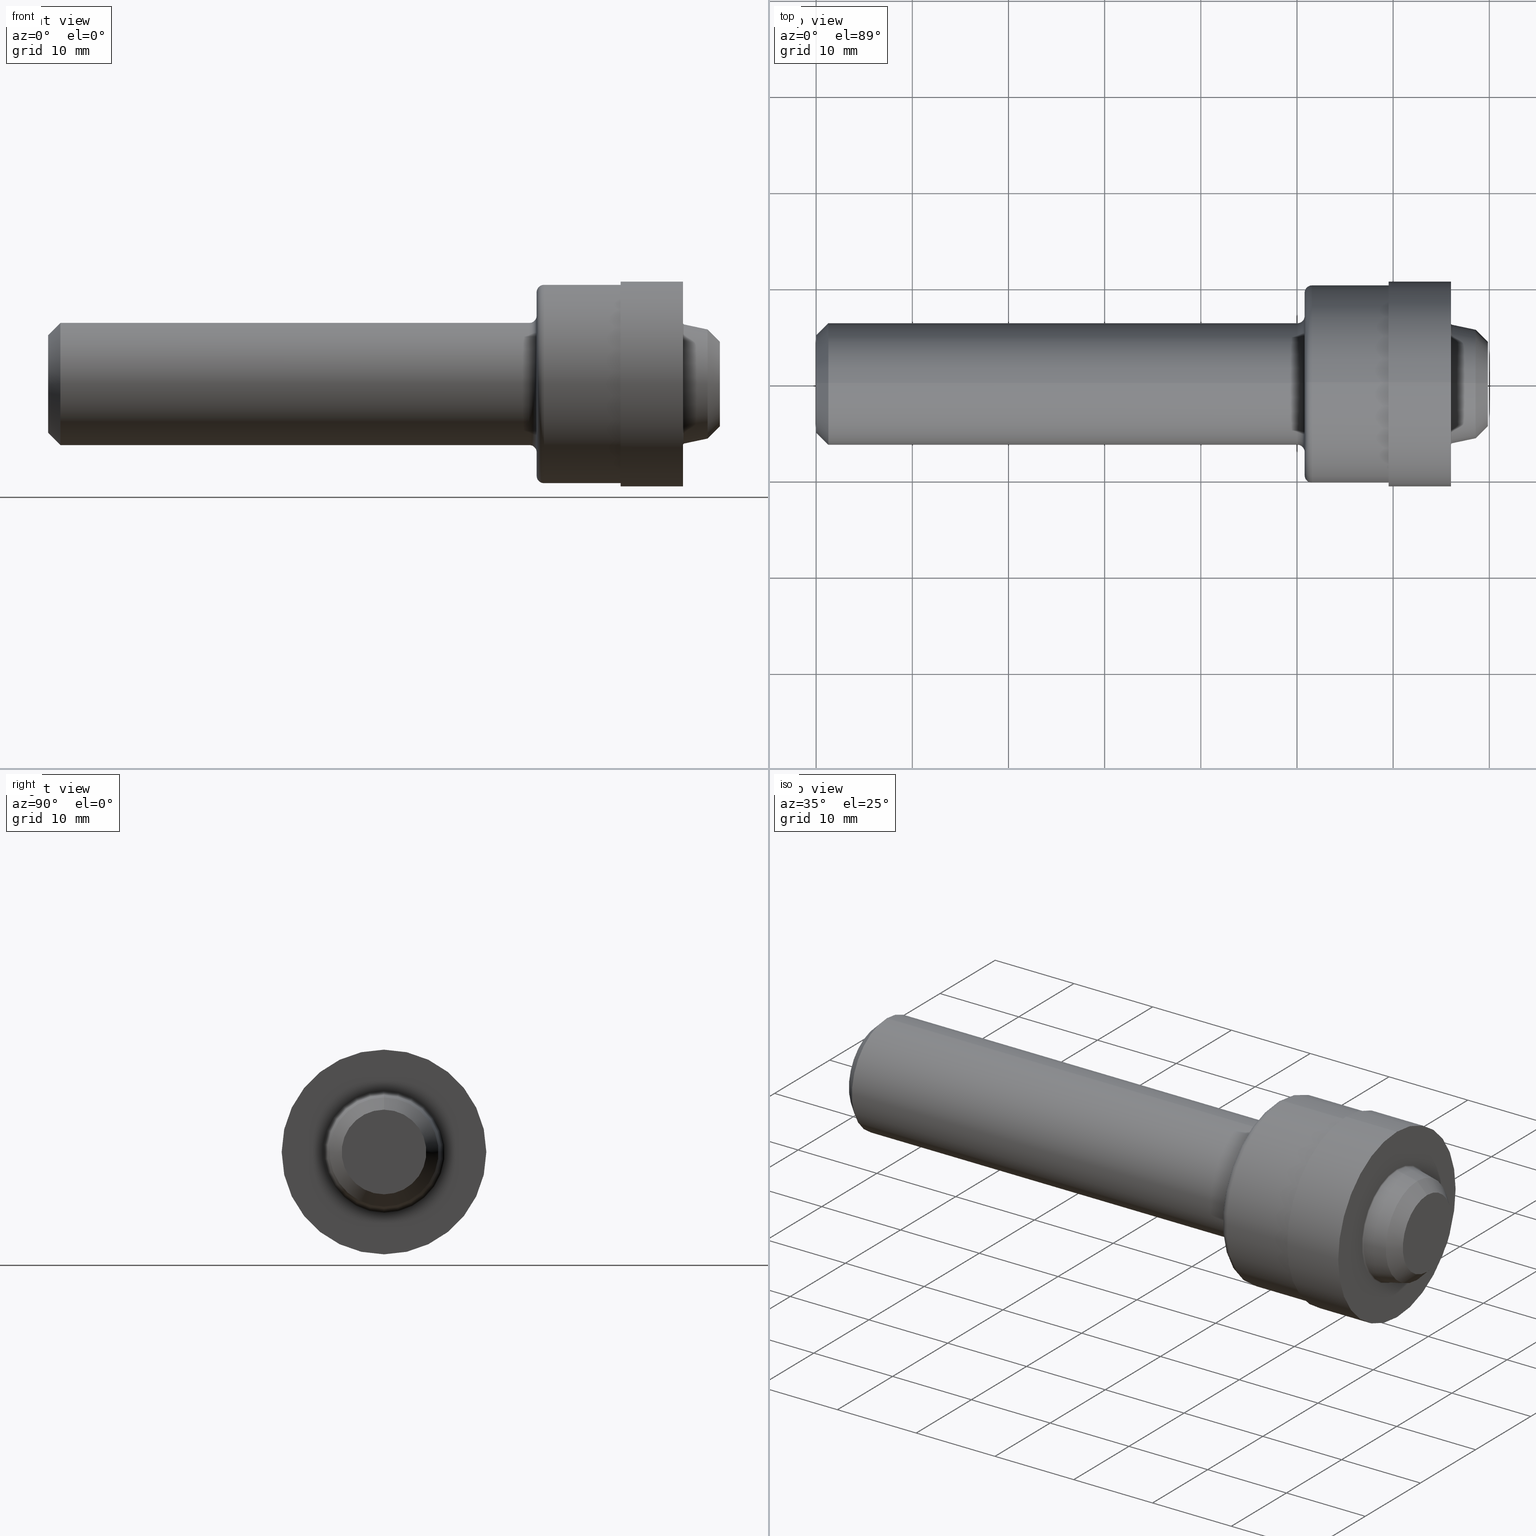
[diagram: canonical four-view strip — front | top / right | iso, engineering-drawing reading convention]
A machine part, canonical four-view strip (front | top / right | iso — engineering-drawing reading convention). The complete STEP part file that produces these views, byte-faithful:
ISO-10303-21;
HEADER;
FILE_DESCRIPTION (( 'STEP AP214' ),
    '1' );
FILE_NAME ('SAEJ1926-04X.STEP',
    '2023-11-07T17:19:13',
    ( '' ),
    ( '' ),
    'SwSTEP 2.0',
    'SolidWorks 2022',
    '' );
FILE_SCHEMA (( 'AUTOMOTIVE_DESIGN' ));
ENDSEC;

DATA;
#1 = DIRECTION ( 'NONE',  ( -1.000000000000000000, -0.000000000000000000, -0.000000000000000000 ) ) ;
#2 = CIRCLE ( 'NONE', #450, 0.4060000000000000275 ) ;
#3 = DIRECTION ( 'NONE',  ( 1.000000000000000000, 0.000000000000000000, 0.000000000000000000 ) ) ;
#4 = DIRECTION ( 'NONE',  ( -1.000000000000000000, -0.000000000000000000, -0.000000000000000000 ) ) ;
#5 = DIRECTION ( 'NONE',  ( -1.000000000000000000, -0.000000000000000000, -0.000000000000000000 ) ) ;
#6 = FACE_OUTER_BOUND ( 'NONE', #486, .T. ) ;
#7 = CARTESIAN_POINT ( 'NONE',  ( 0.000000000000000000, 4.972066004538254105E-17, -0.4059999999999999720 ) ) ;
#8 = CARTESIAN_POINT ( 'NONE',  ( 2.598999999999999755, 0.000000000000000000, 0.000000000000000000 ) ) ;
#9 = DIRECTION ( 'NONE',  ( 0.000000000000000000, -1.000000000000000000, 0.000000000000000000 ) ) ;
#10 = EDGE_CURVE ( 'NONE', #480, #261, #238, .T. ) ;
#11 = DIRECTION ( 'NONE',  ( -1.000000000000000000, -0.000000000000000000, -0.000000000000000000 ) ) ;
#12 = AXIS2_PLACEMENT_3D ( 'NONE', #111, #20, #571 ) ;
#13 = MECHANICAL_DESIGN_GEOMETRIC_PRESENTATION_REPRESENTATION (  '', ( #402 ), #234 ) ;
#14 = AXIS2_PLACEMENT_3D ( 'NONE', #407, #116, #621 ) ;
#15 = TOROIDAL_SURFACE ( 'NONE', #168, 0.2500135962157675196, 0.006500000000000007508 ) ;
#16 = DIRECTION ( 'NONE',  ( -1.000000000000000000, -0.000000000000000000, -0.000000000000000000 ) ) ;
#17 = ORIENTED_EDGE ( 'NONE', *, *, #589, .T. ) ;
#18 = CARTESIAN_POINT ( 'NONE',  ( 0.05000000000000000278, 0.000000000000000000, 0.000000000000000000 ) ) ;
#19 = EDGE_CURVE ( 'NONE', #543, #373, #406, .T. ) ;
#20 = DIRECTION ( 'NONE',  ( -0.000000000000000000, 1.000000000000000000, 1.224646799147353207E-16 ) ) ;
#21 = VERTEX_POINT ( 'NONE', #636 ) ;
#22 = VECTOR ( 'NONE', #501, 39.37007874015748143 ) ;
#23 = AXIS2_PLACEMENT_3D ( 'NONE', #303, #473, #419 ) ;
#24 = CARTESIAN_POINT ( 'NONE',  ( 2.598999999999999755, 0.000000000000000000, 0.000000000000000000 ) ) ;
#25 = CARTESIAN_POINT ( 'NONE',  ( 2.000000000000000000, 0.000000000000000000, 0.2799999999999999711 ) ) ;
#26 = ORIENTED_EDGE ( 'NONE', *, *, #567, .T. ) ;
#27 =( CONVERSION_BASED_UNIT ( 'INCH', #176 ) LENGTH_UNIT ( ) NAMED_UNIT ( #453 ) );
#28 = DIRECTION ( 'NONE',  ( -1.000000000000000000, -0.000000000000000000, -0.000000000000000000 ) ) ;
#29 = EDGE_CURVE ( 'NONE', #539, #594, #101, .T. ) ;
#30 = EDGE_LOOP ( 'NONE', ( #46, #274, #306, #183 ) ) ;
#31 = CIRCLE ( 'NONE', #505, 0.2799999999999999711 ) ;
#32 = AXIS2_PLACEMENT_3D ( 'NONE', #275, #483, #171 ) ;
#33 = ORIENTED_EDGE ( 'NONE', *, *, #301, .T. ) ;
#34 = ORIENTED_EDGE ( 'NONE', *, *, #232, .F. ) ;
#35 = ORIENTED_EDGE ( 'NONE', *, *, #217, .F. ) ;
#36 = ORIENTED_EDGE ( 'NONE', *, *, #173, .T. ) ;
#37 = ADVANCED_FACE ( 'NONE', ( #293 ), #15, .F. ) ;
#38 = DIRECTION ( 'NONE',  ( -1.000000000000000000, -0.000000000000000000, -0.000000000000000000 ) ) ;
#39 = FILL_AREA_STYLE_COLOUR ( '', #75 ) ;
#40 = CARTESIAN_POINT ( 'NONE',  ( 2.750000000000000000, 0.000000000000000000, 0.000000000000000000 ) ) ;
#41 = EDGE_LOOP ( 'NONE', ( #533, #639, #285, #172 ) ) ;
#42 = EDGE_CURVE ( 'NONE', #594, #378, #547, .T. ) ;
#43 = ORIENTED_EDGE ( 'NONE', *, *, #90, .F. ) ;
#44 = AXIS2_PLACEMENT_3D ( 'NONE', #123, #263, #319 ) ;
#45 = CIRCLE ( 'NONE', #235, 0.2500000000000000000 ) ;
#46 = ORIENTED_EDGE ( 'NONE', *, *, #83, .T. ) ;
#47 = ORIENTED_EDGE ( 'NONE', *, *, #29, .F. ) ;
#48 = DIRECTION ( 'NONE',  ( 0.000000000000000000, 0.000000000000000000, 1.000000000000000000 ) ) ;
#49 = PRODUCT_DEFINITION_CONTEXT ( 'detailed design', #333, 'design' ) ;
#50 = CIRCLE ( 'NONE', #415, 0.2500135962157675196 ) ;
#51 = VECTOR ( 'NONE', #124, 39.37007874015748143 ) ;
#52 = DIRECTION ( 'NONE',  ( -0.7071067811865537900, 0.000000000000000000, 0.7071067811865411334 ) ) ;
#53 = DIMENSIONAL_EXPONENTS ( 1.000000000000000000, 0.000000000000000000, 0.000000000000000000, 0.000000000000000000, 0.000000000000000000, 0.000000000000000000, 0.000000000000000000 ) ;
#54 = ADVANCED_FACE ( 'NONE', ( #104, #557 ), #143, .F. ) ;
#55 = DIRECTION ( 'NONE',  ( 0.000000000000000000, 0.000000000000000000, 1.000000000000000000 ) ) ;
#56 = FACE_OUTER_BOUND ( 'NONE', #41, .T. ) ;
#57 = FACE_OUTER_BOUND ( 'NONE', #335, .T. ) ;
#58 = DIRECTION ( 'NONE',  ( -1.000000000000000000, -0.000000000000000000, -0.000000000000000000 ) ) ;
#59 = CARTESIAN_POINT ( 'NONE',  ( 1.969999999999999973, 0.000000000000000000, 0.2500000000000000000 ) ) ;
#60 = AXIS2_PLACEMENT_3D ( 'NONE', #444, #487, #281 ) ;
#61 = CIRCLE ( 'NONE', #484, 0.2500000000000000000 ) ;
#62 = CARTESIAN_POINT ( 'NONE',  ( 0.000000000000000000, 0.000000000000000000, -0.2000000000000001776 ) ) ;
#63 = ADVANCED_FACE ( 'NONE', ( #344 ), #245, .T. ) ;
#64 = EDGE_LOOP ( 'NONE', ( #577, #445 ) ) ;
#65 = FACE_OUTER_BOUND ( 'NONE', #224, .T. ) ;
#66 = DIRECTION ( 'NONE',  ( 1.000000000000000000, 0.000000000000000000, 0.000000000000000000 ) ) ;
#67 = PLANE ( 'NONE',  #76 ) ;
#68 = ORIENTED_EDGE ( 'NONE', *, *, #331, .T. ) ;
#69 = CARTESIAN_POINT ( 'NONE',  ( 0.000000000000000000, 0.000000000000000000, 0.000000000000000000 ) ) ;
#70 = DIRECTION ( 'NONE',  ( 0.000000000000000000, 0.000000000000000000, -1.000000000000000000 ) ) ;
#71 = DIRECTION ( 'NONE',  ( 0.000000000000000000, 0.000000000000000000, 1.000000000000000000 ) ) ;
#72 = DIRECTION ( 'NONE',  ( 0.000000000000000000, 0.000000000000000000, 1.000000000000000000 ) ) ;
#73 = ORIENTED_EDGE ( 'NONE', *, *, #331, .F. ) ;
#74 = CARTESIAN_POINT ( 'NONE',  ( 2.750000000000000000, 0.000000000000000000, 0.000000000000000000 ) ) ;
#75 = COLOUR_RGB ( '',0.7529411764705882248, 0.7529411764705882248, 0.7529411764705882248 ) ;
#76 = AXIS2_PLACEMENT_3D ( 'NONE', #523, #260, #152 ) ;
#77 = DIRECTION ( 'NONE',  ( -1.000000000000000000, -0.000000000000000000, -0.000000000000000000 ) ) ;
#78 = CARTESIAN_POINT ( 'NONE',  ( 2.029999999999999805, 4.972066004538254105E-17, -0.4059999999999999720 ) ) ;
#79 = APPLICATION_PROTOCOL_DEFINITION ( 'draft international standard', 'automotive_design', 1998, #641 ) ;
#80 = EDGE_CURVE ( 'NONE', #430, #373, #299, .T. ) ;
#81 = ORIENTED_EDGE ( 'NONE', *, *, #206, .T. ) ;
#82 = CARTESIAN_POINT ( 'NONE',  ( 2.343999999999999861, 0.000000000000000000, 0.4189999999999999836 ) ) ;
#83 = EDGE_CURVE ( 'NONE', #498, #85, #442, .T. ) ;
#84 = PRODUCT_CONTEXT ( 'NONE', #641, 'mechanical' ) ;
#85 = VERTEX_POINT ( 'NONE', #401 ) ;
#86 = CARTESIAN_POINT ( 'NONE',  ( 2.000000000000000000, 0.000000000000000000, 0.000000000000000000 ) ) ;
#87 = AXIS2_PLACEMENT_3D ( 'NONE', #8, #197, #346 ) ;
#88 = TOROIDAL_SURFACE ( 'NONE', #536, 0.3760000000000000564, 0.02999999999999998848 ) ;
#89 = VERTEX_POINT ( 'NONE', #198 ) ;
#90 = EDGE_CURVE ( 'NONE', #525, #130, #2, .T. ) ;
#91 = UNCERTAINTY_MEASURE_WITH_UNIT (LENGTH_MEASURE( 1.000000000000000082E-05 ), #27, 'distance_accuracy_value', 'NONE');
#92 = EDGE_LOOP ( 'NONE', ( #584, #332 ) ) ;
#93 = DIRECTION ( 'NONE',  ( 0.000000000000000000, 0.000000000000000000, 1.000000000000000000 ) ) ;
#94 = ORIENTED_EDGE ( 'NONE', *, *, #217, .T. ) ;
#95 = ORIENTED_EDGE ( 'NONE', *, *, #173, .F. ) ;
#96 = CIRCLE ( 'NONE', #44, 0.02999999999999998848 ) ;
#97 = ORIENTED_EDGE ( 'NONE', *, *, #504, .F. ) ;
#98 = EDGE_CURVE ( 'NONE', #378, #594, #132, .T. ) ;
#99 = FACE_OUTER_BOUND ( 'NONE', #424, .T. ) ;
#100 = FACE_BOUND ( 'NONE', #631, .T. ) ;
#101 = LINE ( 'NONE', #348, #462 ) ;
#102 = EDGE_CURVE ( 'NONE', #159, #529, #460, .T. ) ;
#103 = CIRCLE ( 'NONE', #554, 0.006500000000000019651 ) ;
#104 = FACE_OUTER_BOUND ( 'NONE', #92, .T. ) ;
#105 = CARTESIAN_POINT ( 'NONE',  ( 2.750000000000000000, 0.000000000000000000, 0.1732817872713283414 ) ) ;
#106 = DIRECTION ( 'NONE',  ( 0.000000000000000000, 0.000000000000000000, -1.000000000000000000 ) ) ;
#107 = EDGE_CURVE ( 'NONE', #531, #21, #513, .T. ) ;
#108 = LENGTH_MEASURE_WITH_UNIT ( LENGTH_MEASURE( 0.02539999999999999897 ), #117 );
#109 = CYLINDRICAL_SURFACE ( 'NONE', #575, 0.2500000000000000000 ) ;
#110 = AXIS2_PLACEMENT_3D ( 'NONE', #196, #11, #150 ) ;
#111 = CARTESIAN_POINT ( 'NONE',  ( 1.969999999999999973, 3.429011037612588783E-17, -0.2799999999999999711 ) ) ;
#112 = EDGE_LOOP ( 'NONE', ( #519, #136, #226, #221 ) ) ;
#113 = DIRECTION ( 'NONE',  ( 1.000000000000000000, 0.000000000000000000, 0.000000000000000000 ) ) ;
#114 = DIRECTION ( 'NONE',  ( -1.000000000000000000, -0.000000000000000000, -0.000000000000000000 ) ) ;
#115 = ORIENTED_EDGE ( 'NONE', *, *, #120, .T. ) ;
#116 = DIRECTION ( 'NONE',  ( -1.000000000000000000, -0.000000000000000000, -0.000000000000000000 ) ) ;
#117 =( LENGTH_UNIT ( ) NAMED_UNIT ( * ) SI_UNIT ( $, .METRE. ) );
#118 = ORIENTED_EDGE ( 'NONE', *, *, #579, .F. ) ;
#119 = SURFACE_SIDE_STYLE ('',( #572 ) ) ;
#120 = EDGE_CURVE ( 'NONE', #273, #580, #31, .T. ) ;
#121 = CARTESIAN_POINT ( 'NONE',  ( 0.05000000000000000278, 0.000000000000000000, 0.000000000000000000 ) ) ;
#122 = VECTOR ( 'NONE', #602, 39.37007874015748143 ) ;
#123 = CARTESIAN_POINT ( 'NONE',  ( 1.969999999999999973, 0.000000000000000000, 0.2799999999999999711 ) ) ;
#124 = DIRECTION ( 'NONE',  ( -1.000000000000000000, -0.000000000000000000, -0.000000000000000000 ) ) ;
#125 = ORIENTED_EDGE ( 'NONE', *, *, #188, .F. ) ;
#126 = ORIENTED_EDGE ( 'NONE', *, *, #598, .T. ) ;
#127 = DIRECTION ( 'NONE',  ( 0.000000000000000000, 0.000000000000000000, 1.000000000000000000 ) ) ;
#128 = ORIENTED_EDGE ( 'NONE', *, *, #313, .T. ) ;
#129 = EDGE_CURVE ( 'NONE', #261, #480, #155, .T. ) ;
#130 = VERTEX_POINT ( 'NONE', #351 ) ;
#131 = DIRECTION ( 'NONE',  ( -1.000000000000000000, -0.000000000000000000, -0.000000000000000000 ) ) ;
#132 = CIRCLE ( 'NONE', #561, 0.2500000000000000000 ) ;
#133 = AXIS2_PLACEMENT_3D ( 'NONE', #74, #255, #518 ) ;
#134 = EDGE_LOOP ( 'NONE', ( #95, #126, #392, #588 ) ) ;
#135 = DIRECTION ( 'NONE',  ( -0.000000000000000000, 1.000000000000000000, 1.224646799147353207E-16 ) ) ;
#136 = ORIENTED_EDGE ( 'NONE', *, *, #383, .T. ) ;
#137 = DIRECTION ( 'NONE',  ( 0.000000000000000000, 0.000000000000000000, 1.000000000000000000 ) ) ;
#138 = LINE ( 'NONE', #7, #122 ) ;
#139 = EDGE_LOOP ( 'NONE', ( #140, #128, #229, #370 ) ) ;
#140 = ORIENTED_EDGE ( 'NONE', *, *, #90, .T. ) ;
#141 = CYLINDRICAL_SURFACE ( 'NONE', #199, 0.4189999999999999836 ) ;
#142 = AXIS2_PLACEMENT_3D ( 'NONE', #296, #555, #599 ) ;
#143 = PLANE ( 'NONE',  #142 ) ;
#144 = DIRECTION ( 'NONE',  ( -1.000000000000000000, -0.000000000000000000, -0.000000000000000000 ) ) ;
#145 = ADVANCED_FACE ( 'NONE', ( #99 ), #201, .F. ) ;
#146 = DIRECTION ( 'NONE',  ( 0.000000000000000000, 0.000000000000000000, 1.000000000000000000 ) ) ;
#147 = DIRECTION ( 'NONE',  ( 0.000000000000000000, 0.000000000000000000, 1.000000000000000000 ) ) ;
#148 = AXIS2_PLACEMENT_3D ( 'NONE', #600, #1, #146 ) ;
#149 = AXIS2_PLACEMENT_3D ( 'NONE', #609, #259, #467 ) ;
#150 = DIRECTION ( 'NONE',  ( 0.000000000000000000, 0.000000000000000000, 1.000000000000000000 ) ) ;
#151 = DIRECTION ( 'NONE',  ( 0.000000000000000000, 0.000000000000000000, -1.000000000000000000 ) ) ;
#152 = DIRECTION ( 'NONE',  ( 0.000000000000000000, 0.000000000000000000, -1.000000000000000000 ) ) ;
#153 = CARTESIAN_POINT ( 'NONE',  ( 0.000000000000000000, 0.000000000000000000, 0.2500000000000000000 ) ) ;
#154 = ORIENTED_EDGE ( 'NONE', *, *, #107, .F. ) ;
#155 = CIRCLE ( 'NONE', #458, 0.2000000000000001776 ) ;
#156 = AXIS2_PLACEMENT_3D ( 'NONE', #240, #587, #640 ) ;
#157 = SURFACE_STYLE_USAGE ( .BOTH. , #209 ) ;
#158 = DIRECTION ( 'NONE',  ( -1.000000000000000000, -0.000000000000000000, -0.000000000000000000 ) ) ;
#159 = VERTEX_POINT ( 'NONE', #105 ) ;
#160 = CARTESIAN_POINT ( 'NONE',  ( 2.029999999999999805, 0.000000000000000000, 0.4059999999999999720 ) ) ;
#161 = DIRECTION ( 'NONE',  ( 0.7071067811865489050, 8.659560562354915602E-17, 0.7071067811865461294 ) ) ;
#162 = ADVANCED_FACE ( 'NONE', ( #249 ), #317, .T. ) ;
#163 = CARTESIAN_POINT ( 'NONE',  ( 2.343999999999999861, 0.000000000000000000, 0.000000000000000000 ) ) ;
#164 = FACE_OUTER_BOUND ( 'NONE', #492, .T. ) ;
#165 = CARTESIAN_POINT ( 'NONE',  ( 2.343999999999999861, 5.131270088427409669E-17, -0.4189999999999999836 ) ) ;
#166 = DIRECTION ( 'NONE',  ( -0.000000000000000000, 1.000000000000000000, 1.224646799147353207E-16 ) ) ;
#167 = CIRCLE ( 'NONE', #60, 0.006500000000000019651 ) ;
#168 = AXIS2_PLACEMENT_3D ( 'NONE', #291, #552, #550 ) ;
#169 = EDGE_LOOP ( 'NONE', ( #593, #485 ) ) ;
#170 = DIRECTION ( 'NONE',  ( 0.000000000000000000, 0.000000000000000000, 1.000000000000000000 ) ) ;
#171 = DIRECTION ( 'NONE',  ( -0.000000000000000000, 0.000000000000000000, 1.000000000000000000 ) ) ;
#172 = ORIENTED_EDGE ( 'NONE', *, *, #567, .F. ) ;
#173 = EDGE_CURVE ( 'NONE', #89, #430, #456, .T. ) ;
#174 = DIRECTION ( 'NONE',  ( 0.000000000000000000, 0.000000000000000000, 1.000000000000000000 ) ) ;
#175 = ORIENTED_EDGE ( 'NONE', *, *, #399, .T. ) ;
#176 = LENGTH_MEASURE_WITH_UNIT ( LENGTH_MEASURE( 0.02539999999999999897 ), #633 );
#177 = DIRECTION ( 'NONE',  ( -1.000000000000000000, -0.000000000000000000, -0.000000000000000000 ) ) ;
#178 = ADVANCED_FACE ( 'NONE', ( #511, #57 ), #617, .F. ) ;
#179 = ORIENTED_EDGE ( 'NONE', *, *, #98, .T. ) ;
#180 = AXIS2_PLACEMENT_3D ( 'NONE', #408, #465, #622 ) ;
#181 = AXIS2_PLACEMENT_3D ( 'NONE', #316, #591, #93 ) ;
#182 = CARTESIAN_POINT ( 'NONE',  ( 2.598999999999999755, 0.000000000000000000, 0.4189999999999999836 ) ) ;
#183 = ORIENTED_EDGE ( 'NONE', *, *, #433, .F. ) ;
#184 =( LENGTH_UNIT ( ) NAMED_UNIT ( * ) SI_UNIT ( $, .METRE. ) );
#185 = DIRECTION ( 'NONE',  ( 0.000000000000000000, 0.000000000000000000, 1.000000000000000000 ) ) ;
#186 = DIRECTION ( 'NONE',  ( 0.000000000000000000, 0.000000000000000000, 1.000000000000000000 ) ) ;
#187 = ORIENTED_EDGE ( 'NONE', *, *, #206, .F. ) ;
#188 = EDGE_CURVE ( 'NONE', #539, #580, #637, .T. ) ;
#189 = ORIENTED_EDGE ( 'NONE', *, *, #540, .F. ) ;
#190 = MANIFOLD_SOLID_BREP ( 'Body', #527 ) ;
#191 = COLOUR_RGB ( '',0.7529411764705882248, 0.7529411764705882248, 0.7529411764705882248 ) ;
#192 = CARTESIAN_POINT ( 'NONE',  ( 0.05000000000000000278, 0.000000000000000000, 0.000000000000000000 ) ) ;
#193 = AXIS2_PLACEMENT_3D ( 'NONE', #345, #449, #186 ) ;
#194 = FACE_OUTER_BOUND ( 'NONE', #210, .T. ) ;
#195 = DIRECTION ( 'NONE',  ( 0.000000000000000000, 0.000000000000000000, 1.000000000000000000 ) ) ;
#196 = CARTESIAN_POINT ( 'NONE',  ( 2.029999999999999805, 0.000000000000000000, 0.000000000000000000 ) ) ;
#197 = DIRECTION ( 'NONE',  ( -1.000000000000000000, -0.000000000000000000, -0.000000000000000000 ) ) ;
#198 = CARTESIAN_POINT ( 'NONE',  ( 2.750000000000000000, 2.428251561110483174E-17, -0.1732817872713283414 ) ) ;
#199 = AXIS2_PLACEMENT_3D ( 'NONE', #339, #544, #499 ) ;
#200 = PRESENTATION_LAYER_ASSIGNMENT (  '', '', ( #402 ) ) ;
#201 = TOROIDAL_SURFACE ( 'NONE', #482, 0.2799999999999999711, 0.02999999999999997113 ) ;
#202 = AXIS2_PLACEMENT_3D ( 'NONE', #294, #503, #512 ) ;
#203 = AXIS2_PLACEMENT_3D ( 'NONE', #121, #66, #106 ) ;
#204 = AXIS2_PLACEMENT_3D ( 'NONE', #384, #38, #438 ) ;
#205 = CARTESIAN_POINT ( 'NONE',  ( 0.000000000000000000, 0.000000000000000000, 0.000000000000000000 ) ) ;
#206 = EDGE_CURVE ( 'NONE', #21, #531, #50, .T. ) ;
#207 = FACE_OUTER_BOUND ( 'NONE', #629, .T. ) ;
#208 = LINE ( 'NONE', #153, #506 ) ;
#209 = SURFACE_SIDE_STYLE ('',( #468 ) ) ;
#210 = EDGE_LOOP ( 'NONE', ( #469, #619, #489, #35 ) ) ;
#211 = LINE ( 'NONE', #620, #305 ) ;
#212 = ORIENTED_EDGE ( 'NONE', *, *, #579, .T. ) ;
#213 = ADVANCED_FACE ( 'NONE', ( #214 ), #219, .F. ) ;
#214 = FACE_OUTER_BOUND ( 'NONE', #258, .T. ) ;
#215 = ORIENTED_EDGE ( 'NONE', *, *, #425, .T. ) ;
#216 = ORIENTED_EDGE ( 'NONE', *, *, #98, .F. ) ;
#217 = EDGE_CURVE ( 'NONE', #529, #543, #211, .T. ) ;
#218 = CARTESIAN_POINT ( 'NONE',  ( 2.029999999999999805, 4.604671964794048956E-17, -0.3760000000000000564 ) ) ;
#219 = TOROIDAL_SURFACE ( 'NONE', #180, 0.2500135962157675196, 0.006500000000000007508 ) ;
#220 = CIRCLE ( 'NONE', #156, 0.3760000000000000564 ) ;
#221 = ORIENTED_EDGE ( 'NONE', *, *, #454, .F. ) ;
#222 = PRODUCT_DEFINITION ( 'UNKNOWN', '', #298, #49 ) ;
#223 = DIRECTION ( 'NONE',  ( -1.000000000000000000, -0.000000000000000000, -0.000000000000000000 ) ) ;
#224 = EDGE_LOOP ( 'NONE', ( #270, #538, #361, #488 ) ) ;
#225 = CARTESIAN_POINT ( 'NONE',  ( 0.000000000000000000, 5.131270088427409669E-17, -0.4189999999999999836 ) ) ;
#226 = ORIENTED_EDGE ( 'NONE', *, *, #625, .T. ) ;
#227 = DIRECTION ( 'NONE',  ( 0.000000000000000000, -1.224646799147348523E-16, 1.000000000000000000 ) ) ;
#228 = UNCERTAINTY_MEASURE_WITH_UNIT (LENGTH_MEASURE( 1.000000000000000082E-05 ), #590, 'distance_accuracy_value', 'NONE');
#229 = ORIENTED_EDGE ( 'NONE', *, *, #422, .F. ) ;
#230 = VERTEX_POINT ( 'NONE', #165 ) ;
#231 = DIRECTION ( 'NONE',  ( 0.000000000000000000, 0.000000000000000000, -1.000000000000000000 ) ) ;
#232 = EDGE_CURVE ( 'NONE', #480, #378, #414, .T. ) ;
#233 = CIRCLE ( 'NONE', #604, 0.4189999999999999836 ) ;
#234 =( GEOMETRIC_REPRESENTATION_CONTEXT ( 3 ) GLOBAL_UNCERTAINTY_ASSIGNED_CONTEXT ( ( #228 ) ) GLOBAL_UNIT_ASSIGNED_CONTEXT ( ( #590, #287, #239 ) ) REPRESENTATION_CONTEXT ( 'NONE', 'WORKASPACE' ) );
#235 = AXIS2_PLACEMENT_3D ( 'NONE', #420, #457, #363 ) ;
#236 = EDGE_LOOP ( 'NONE', ( #478, #627, #179, #569 ) ) ;
#237 = ORIENTED_EDGE ( 'NONE', *, *, #399, .F. ) ;
#238 = CIRCLE ( 'NONE', #606, 0.2000000000000001776 ) ;
#239 =( NAMED_UNIT ( * ) SI_UNIT ( $, .STERADIAN. ) SOLID_ANGLE_UNIT ( ) );
#240 = CARTESIAN_POINT ( 'NONE',  ( 2.000000000000000000, 0.000000000000000000, 0.000000000000000000 ) ) ;
#241 = EDGE_LOOP ( 'NONE', ( #336, #542 ) ) ;
#242 = FACE_OUTER_BOUND ( 'NONE', #30, .T. ) ;
#243 = DIRECTION ( 'NONE',  ( 0.000000000000000000, 0.000000000000000000, 1.000000000000000000 ) ) ;
#244 = ADVANCED_FACE ( 'NONE', ( #368 ), #67, .F. ) ;
#245 = CONICAL_SURFACE ( 'NONE', #596, 0.1732817872713283414, 0.7853981633974393972 ) ;
#246 = CARTESIAN_POINT ( 'NONE',  ( 0.05000000000000000278, 0.000000000000000000, 0.000000000000000000 ) ) ;
#247 = AXIS2_PLACEMENT_3D ( 'NONE', #163, #427, #170 ) ;
#248 = DIRECTION ( 'NONE',  ( 0.000000000000000000, 0.000000000000000000, 1.000000000000000000 ) ) ;
#249 = FACE_OUTER_BOUND ( 'NONE', #280, .T. ) ;
#250 = CARTESIAN_POINT ( 'NONE',  ( 2.000000000000000000, 3.429011037612588783E-17, -0.2799999999999999711 ) ) ;
#251 = EDGE_CURVE ( 'NONE', #430, #529, #403, .T. ) ;
#252 = CARTESIAN_POINT ( 'NONE',  ( 2.750000000000000000, 0.000000000000000000, 0.1732817872713283414 ) ) ;
#253 = AXIS2_PLACEMENT_3D ( 'NONE', #411, #257, #479 ) ;
#254 = CIRCLE ( 'NONE', #23, 0.4060000000000000275 ) ;
#255 = DIRECTION ( 'NONE',  ( -1.000000000000000000, -0.000000000000000000, -0.000000000000000000 ) ) ;
#256 = AXIS2_PLACEMENT_3D ( 'NONE', #246, #595, #243 ) ;
#257 = DIRECTION ( 'NONE',  ( 1.000000000000000000, 0.000000000000000000, 0.000000000000000000 ) ) ;
#258 = EDGE_LOOP ( 'NONE', ( #187, #282, #68, #623 ) ) ;
#259 = DIRECTION ( 'NONE',  ( -1.000000000000000000, -0.000000000000000000, -0.000000000000000000 ) ) ;
#260 = DIRECTION ( 'NONE',  ( 1.000000000000000000, 0.000000000000000000, 0.000000000000000000 ) ) ;
#261 = VERTEX_POINT ( 'NONE', #62 ) ;
#262 = FACE_OUTER_BOUND ( 'NONE', #315, .T. ) ;
#263 = DIRECTION ( 'NONE',  ( 0.000000000000000000, -1.000000000000000000, 0.000000000000000000 ) ) ;
#264 = VERTEX_POINT ( 'NONE', #268 ) ;
#265 = DIRECTION ( 'NONE',  ( -1.000000000000000000, -0.000000000000000000, -0.000000000000000000 ) ) ;
#266 = AXIS2_PLACEMENT_3D ( 'NONE', #516, #77, #365 ) ;
#267 = CONICAL_SURFACE ( 'NONE', #193, 0.2232817872713277474, 0.2094395102393198926 ) ;
#268 = CARTESIAN_POINT ( 'NONE',  ( 2.000000000000000000, 4.788368984666151531E-17, -0.3760000000000000564 ) ) ;
#269 = FACE_OUTER_BOUND ( 'NONE', #139, .T. ) ;
#270 = ORIENTED_EDGE ( 'NONE', *, *, #447, .F. ) ;
#271 = PLANE ( 'NONE',  #32 ) ;
#272 = ORIENTED_EDGE ( 'NONE', *, *, #107, .T. ) ;
#273 = VERTEX_POINT ( 'NONE', #25 ) ;
#274 = ORIENTED_EDGE ( 'NONE', *, *, #474, .T. ) ;
#275 = CARTESIAN_POINT ( 'NONE',  ( 2.750000000000000000, 0.1732817872713283414, 0.000000000000000000 ) ) ;
#276 = STYLED_ITEM ( 'NONE', ( #566 ), #190 ) ;
#277 = CIRCLE ( 'NONE', #638, 0.02999999999999995379 ) ;
#278 = ORIENTED_EDGE ( 'NONE', *, *, #447, .T. ) ;
#279 = CARTESIAN_POINT ( 'NONE',  ( 1.969999999999999973, 0.000000000000000000, 0.000000000000000000 ) ) ;
#280 = EDGE_LOOP ( 'NONE', ( #237, #330, #337, #118 ) ) ;
#281 = DIRECTION ( 'NONE',  ( 0.000000000000000000, 0.000000000000000000, -1.000000000000000000 ) ) ;
#282 = ORIENTED_EDGE ( 'NONE', *, *, #410, .T. ) ;
#283 = CARTESIAN_POINT ( 'NONE',  ( 2.605499999999999705, 3.061783503489584799E-17, -0.2500135962157675196 ) ) ;
#284 = EDGE_CURVE ( 'NONE', #85, #498, #350, .T. ) ;
#285 = ORIENTED_EDGE ( 'NONE', *, *, #433, .T. ) ;
#286 = ORIENTED_EDGE ( 'NONE', *, *, #129, .F. ) ;
#287 =( NAMED_UNIT ( * ) PLANE_ANGLE_UNIT ( ) SI_UNIT ( $, .RADIAN. ) );
#288 = ORIENTED_EDGE ( 'NONE', *, *, #42, .F. ) ;
#289 = CARTESIAN_POINT ( 'NONE',  ( 2.000000000000000000, 0.000000000000000000, 0.3760000000000000564 ) ) ;
#290 = EDGE_CURVE ( 'NONE', #412, #230, #233, .T. ) ;
#291 = CARTESIAN_POINT ( 'NONE',  ( 2.605499999999999705, 0.000000000000000000, 0.000000000000000000 ) ) ;
#292 = CARTESIAN_POINT ( 'NONE',  ( 2.699999999999999734, 0.000000000000000000, 0.2232817872713277474 ) ) ;
#293 = FACE_OUTER_BOUND ( 'NONE', #446, .T. ) ;
#294 = CARTESIAN_POINT ( 'NONE',  ( 0.000000000000000000, 0.000000000000000000, 0.000000000000000000 ) ) ;
#295 = DIRECTION ( 'NONE',  ( -1.000000000000000000, -0.000000000000000000, -0.000000000000000000 ) ) ;
#296 = CARTESIAN_POINT ( 'NONE',  ( 2.598999999999999755, 0.4189999999999999836, 0.000000000000000000 ) ) ;
#297 = CONICAL_SURFACE ( 'NONE', #203, 0.2500000000000000000, 0.7853981633974463916 ) ;
#298 = PRODUCT_DEFINITION_FORMATION_WITH_SPECIFIED_SOURCE ( 'ANY', '', #434, .NOT_KNOWN. ) ;
#299 = LINE ( 'NONE', #508, #22 ) ;
#300 = DIRECTION ( 'NONE',  ( 0.000000000000000000, 0.000000000000000000, 1.000000000000000000 ) ) ;
#301 = EDGE_CURVE ( 'NONE', #393, #273, #96, .T. ) ;
#302 = DIRECTION ( 'NONE',  ( -0.7071067811865537900, 8.659560562354855205E-17, -0.7071067811865411334 ) ) ;
#303 = CARTESIAN_POINT ( 'NONE',  ( 2.343999999999999861, 0.000000000000000000, 0.000000000000000000 ) ) ;
#304 =( NAMED_UNIT ( * ) SI_UNIT ( $, .STERADIAN. ) SOLID_ANGLE_UNIT ( ) );
#305 = VECTOR ( 'NONE', #528, 39.37007874015748143 ) ;
#306 = ORIENTED_EDGE ( 'NONE', *, *, #290, .F. ) ;
#307 = AXIS2_PLACEMENT_3D ( 'NONE', #491, #223, #127 ) ;
#308 = DIRECTION ( 'NONE',  ( 0.000000000000000000, 0.000000000000000000, 1.000000000000000000 ) ) ;
#309 = CONICAL_SURFACE ( 'NONE', #494, 0.2500000000000000000, 0.7853981633974463916 ) ;
#310 = EDGE_CURVE ( 'NONE', #531, #543, #167, .T. ) ;
#311 = CARTESIAN_POINT ( 'NONE',  ( 2.343999999999999861, 0.000000000000000000, 0.000000000000000000 ) ) ;
#312 = ORIENTED_EDGE ( 'NONE', *, *, #290, .T. ) ;
#313 = EDGE_CURVE ( 'NONE', #130, #490, #138, .T. ) ;
#314 = DIRECTION ( 'NONE',  ( 0.000000000000000000, 0.000000000000000000, 1.000000000000000000 ) ) ;
#315 = EDGE_LOOP ( 'NONE', ( #582, #175, #97, #189 ) ) ;
#316 = CARTESIAN_POINT ( 'NONE',  ( 0.000000000000000000, 0.000000000000000000, 0.000000000000000000 ) ) ;
#317 = TOROIDAL_SURFACE ( 'NONE', #110, 0.3760000000000000564, 0.02999999999999998848 ) ;
#318 = CIRCLE ( 'NONE', #405, 0.2799999999999999711 ) ;
#319 = DIRECTION ( 'NONE',  ( 0.000000000000000000, 0.000000000000000000, -1.000000000000000000 ) ) ;
#320 = CYLINDRICAL_SURFACE ( 'NONE', #515, 0.4059999999999999720 ) ;
#321 = ORIENTED_EDGE ( 'NONE', *, *, #102, .F. ) ;
#322 = ADVANCED_FACE ( 'NONE', ( #242 ), #141, .T. ) ;
#323 = ORIENTED_EDGE ( 'NONE', *, *, #608, .F. ) ;
#324 = DIRECTION ( 'NONE',  ( 0.000000000000000000, 0.000000000000000000, 1.000000000000000000 ) ) ;
#325 = ORIENTED_EDGE ( 'NONE', *, *, #410, .F. ) ;
#326 =( GEOMETRIC_REPRESENTATION_CONTEXT ( 3 ) GLOBAL_UNCERTAINTY_ASSIGNED_CONTEXT ( ( #328 ) ) GLOBAL_UNIT_ASSIGNED_CONTEXT ( ( #418, #421, #304 ) ) REPRESENTATION_CONTEXT ( 'NONE', 'WORKASPACE' ) );
#327 = AXIS2_PLACEMENT_3D ( 'NONE', #86, #581, #475 ) ;
#328 = UNCERTAINTY_MEASURE_WITH_UNIT (LENGTH_MEASURE( 1.000000000000000082E-05 ), #418, 'distance_accuracy_value', 'NONE');
#329 = CARTESIAN_POINT ( 'NONE',  ( 0.000000000000000000, 2.755455298081545702E-17, 0.2000000000000001776 ) ) ;
#330 = ORIENTED_EDGE ( 'NONE', *, *, #454, .T. ) ;
#331 = EDGE_CURVE ( 'NONE', #373, #543, #342, .T. ) ;
#332 = ORIENTED_EDGE ( 'NONE', *, *, #284, .F. ) ;
#333 = APPLICATION_CONTEXT ( 'automotive_design' ) ;
#334 = ORIENTED_EDGE ( 'NONE', *, *, #608, .T. ) ;
#335 = EDGE_LOOP ( 'NONE', ( #416, #212 ) ) ;
#336 = ORIENTED_EDGE ( 'NONE', *, *, #129, .T. ) ;
#337 = ORIENTED_EDGE ( 'NONE', *, *, #540, .T. ) ;
#338 = ORIENTED_EDGE ( 'NONE', *, *, #29, .T. ) ;
#339 = CARTESIAN_POINT ( 'NONE',  ( 0.000000000000000000, 0.000000000000000000, 0.000000000000000000 ) ) ;
#340 = FACE_OUTER_BOUND ( 'NONE', #612, .T. ) ;
#341 = ADVANCED_FACE ( 'NONE', ( #6 ), #545, .T. ) ;
#342 = CIRCLE ( 'NONE', #493, 0.2436556368109977500 ) ;
#343 = CIRCLE ( 'NONE', #546, 0.02999999999999995379 ) ;
#344 = FACE_OUTER_BOUND ( 'NONE', #134, .T. ) ;
#345 = CARTESIAN_POINT ( 'NONE',  ( 2.699999999999999734, 0.000000000000000000, 0.000000000000000000 ) ) ;
#346 = DIRECTION ( 'NONE',  ( 0.000000000000000000, 0.000000000000000000, 1.000000000000000000 ) ) ;
#347 = CARTESIAN_POINT ( 'NONE',  ( 2.598999999999999755, 0.000000000000000000, 0.2500135962157675196 ) ) ;
#348 = CARTESIAN_POINT ( 'NONE',  ( 0.000000000000000000, 3.061616997868383018E-17, -0.2500000000000000000 ) ) ;
#349 = CARTESIAN_POINT ( 'NONE',  ( 2.699999999999999734, 0.000000000000000000, 0.000000000000000000 ) ) ;
#350 = CIRCLE ( 'NONE', #524, 0.4189999999999999836 ) ;
#351 = CARTESIAN_POINT ( 'NONE',  ( 2.343999999999999861, 4.972066004538254721E-17, -0.4060000000000000275 ) ) ;
#352 = CIRCLE ( 'NONE', #247, 0.4189999999999999836 ) ;
#353 = ADVANCED_FACE ( 'NONE', ( #207 ), #109, .T. ) ;
#354 = DIRECTION ( 'NONE',  ( 0.000000000000000000, 0.000000000000000000, 1.000000000000000000 ) ) ;
#355 = CARTESIAN_POINT ( 'NONE',  ( 0.000000000000000000, 0.000000000000000000, 0.4059999999999999720 ) ) ;
#356 = CARTESIAN_POINT ( 'NONE',  ( 2.750000000000000000, 2.122089861323648632E-17, -0.1732817872713283414 ) ) ;
#357 = CYLINDRICAL_SURFACE ( 'NONE', #362, 0.4189999999999999836 ) ;
#358 = CARTESIAN_POINT ( 'NONE',  ( 2.604148574009684580, 0.000000000000000000, 0.2436556368109977500 ) ) ;
#359 = ADVANCED_FACE ( 'NONE', ( #558 ), #297, .T. ) ;
#360 = DIRECTION ( 'NONE',  ( -1.000000000000000000, -0.000000000000000000, -0.000000000000000000 ) ) ;
#361 = ORIENTED_EDGE ( 'NONE', *, *, #634, .T. ) ;
#362 = AXIS2_PLACEMENT_3D ( 'NONE', #69, #409, #308 ) ;
#363 = DIRECTION ( 'NONE',  ( 0.000000000000000000, 0.000000000000000000, 1.000000000000000000 ) ) ;
#364 = CARTESIAN_POINT ( 'NONE',  ( 2.604148574009684580, 2.983920957147983743E-17, -0.2436556368109977500 ) ) ;
#365 = DIRECTION ( 'NONE',  ( 0.000000000000000000, 0.000000000000000000, 1.000000000000000000 ) ) ;
#366 = DIRECTION ( 'NONE',  ( 0.000000000000000000, 0.000000000000000000, 1.000000000000000000 ) ) ;
#367 = VERTEX_POINT ( 'NONE', #160 ) ;
#368 = FACE_OUTER_BOUND ( 'NONE', #241, .T. ) ;
#369 = DIRECTION ( 'NONE',  ( 0.7071067811865489050, 0.000000000000000000, -0.7071067811865461294 ) ) ;
#370 = ORIENTED_EDGE ( 'NONE', *, *, #625, .F. ) ;
#371 = DIRECTION ( 'NONE',  ( -1.000000000000000000, -0.000000000000000000, -0.000000000000000000 ) ) ;
#372 = CYLINDRICAL_SURFACE ( 'NONE', #181, 0.2500000000000000000 ) ;
#373 = VERTEX_POINT ( 'NONE', #364 ) ;
#374 = PRESENTATION_LAYER_ASSIGNMENT (  '', '', ( #276 ) ) ;
#375 =( NAMED_UNIT ( * ) SI_UNIT ( $, .STERADIAN. ) SOLID_ANGLE_UNIT ( ) );
#376 = ADVANCED_FACE ( 'NONE', ( #570 ), #565, .T. ) ;
#377 = CIRCLE ( 'NONE', #495, 0.1732817872713283414 ) ;
#378 = VERTEX_POINT ( 'NONE', #522 ) ;
#379 = PRODUCT_DEFINITION_SHAPE ( 'NONE', 'NONE',  #222 ) ;
#380 = LINE ( 'NONE', #225, #51 ) ;
#381 = CARTESIAN_POINT ( 'NONE',  ( 0.000000000000000000, 0.000000000000000000, 0.000000000000000000 ) ) ;
#382 = LINE ( 'NONE', #583, #471 ) ;
#383 = EDGE_CURVE ( 'NONE', #130, #525, #254, .T. ) ;
#384 = CARTESIAN_POINT ( 'NONE',  ( 2.604148574009684580, 0.000000000000000000, 0.000000000000000000 ) ) ;
#385 = VECTOR ( 'NONE', #161, 39.37007874015748143 ) ;
#386 = CIRCLE ( 'NONE', #307, 0.4059999999999999720 ) ;
#387 = ORIENTED_EDGE ( 'NONE', *, *, #481, .T. ) ;
#388 = LENGTH_MEASURE_WITH_UNIT ( LENGTH_MEASURE( 0.02539999999999999897 ), #184 );
#389 = ORIENTED_EDGE ( 'NONE', *, *, #80, .F. ) ;
#390 = CARTESIAN_POINT ( 'NONE',  ( 2.343999999999999861, 0.000000000000000000, 0.4060000000000000275 ) ) ;
#391 = ADVANCED_BREP_SHAPE_REPRESENTATION ( 'SAEJ1926-04X', ( #190, #202 ), #470 ) ;
#392 = ORIENTED_EDGE ( 'NONE', *, *, #102, .T. ) ;
#393 = VERTEX_POINT ( 'NONE', #59 ) ;
#394 = ADVANCED_FACE ( 'NONE', ( #164 ), #372, .T. ) ;
#395 = AXIS2_PLACEMENT_3D ( 'NONE', #618, #158, #366 ) ;
#396 = CARTESIAN_POINT ( 'NONE',  ( 2.000000000000000000, 0.000000000000000000, 0.000000000000000000 ) ) ;
#397 = CARTESIAN_POINT ( 'NONE',  ( 2.750000000000000000, 0.000000000000000000, 0.000000000000000000 ) ) ;
#398 = CARTESIAN_POINT ( 'NONE',  ( 2.343999999999999861, 0.000000000000000000, 0.000000000000000000 ) ) ;
#399 = EDGE_CURVE ( 'NONE', #490, #264, #343, .T. ) ;
#400 = SHAPE_DEFINITION_REPRESENTATION ( #379, #391 ) ;
#401 = CARTESIAN_POINT ( 'NONE',  ( 2.598999999999999755, 5.131270088427409669E-17, -0.4189999999999999836 ) ) ;
#402 = STYLED_ITEM ( 'NONE', ( #448 ), #391 ) ;
#403 = CIRCLE ( 'NONE', #266, 0.2232817872713277474 ) ;
#404 = CARTESIAN_POINT ( 'NONE',  ( 2.750000000000000000, 0.000000000000000000, 0.000000000000000000 ) ) ;
#405 = AXIS2_PLACEMENT_3D ( 'NONE', #464, #58, #300 ) ;
#406 = CIRCLE ( 'NONE', #204, 0.2436556368109977500 ) ;
#407 = CARTESIAN_POINT ( 'NONE',  ( 0.000000000000000000, 0.000000000000000000, 0.000000000000000000 ) ) ;
#408 = CARTESIAN_POINT ( 'NONE',  ( 2.605499999999999705, 0.000000000000000000, 0.000000000000000000 ) ) ;
#409 = DIRECTION ( 'NONE',  ( -1.000000000000000000, -0.000000000000000000, -0.000000000000000000 ) ) ;
#410 = EDGE_CURVE ( 'NONE', #21, #373, #103, .T. ) ;
#411 = CARTESIAN_POINT ( 'NONE',  ( 2.000000000000000000, 0.2799999999999999711, 0.000000000000000000 ) ) ;
#412 = VERTEX_POINT ( 'NONE', #82 ) ;
#413 = ADVANCED_FACE ( 'NONE', ( #626 ), #271, .F. ) ;
#414 = LINE ( 'NONE', #560, #385 ) ;
#415 = AXIS2_PLACEMENT_3D ( 'NONE', #24, #360, #314 ) ;
#416 = ORIENTED_EDGE ( 'NONE', *, *, #504, .T. ) ;
#417 = CIRCLE ( 'NONE', #133, 0.1732817872713283414 ) ;
#418 =( CONVERSION_BASED_UNIT ( 'INCH', #108 ) LENGTH_UNIT ( ) NAMED_UNIT ( #53 ) );
#419 = DIRECTION ( 'NONE',  ( 0.000000000000000000, 0.000000000000000000, 1.000000000000000000 ) ) ;
#420 = CARTESIAN_POINT ( 'NONE',  ( 1.969999999999999973, 0.000000000000000000, 0.000000000000000000 ) ) ;
#421 =( NAMED_UNIT ( * ) PLANE_ANGLE_UNIT ( ) SI_UNIT ( $, .RADIAN. ) );
#422 = EDGE_CURVE ( 'NONE', #367, #490, #386, .T. ) ;
#423 = ORIENTED_EDGE ( 'NONE', *, *, #589, .F. ) ;
#424 = EDGE_LOOP ( 'NONE', ( #125, #423, #33, #115 ) ) ;
#425 = EDGE_CURVE ( 'NONE', #159, #89, #377, .T. ) ;
#426 = VECTOR ( 'NONE', #52, 39.37007874015748854 ) ;
#427 = DIRECTION ( 'NONE',  ( -1.000000000000000000, -0.000000000000000000, -0.000000000000000000 ) ) ;
#428 = CIRCLE ( 'NONE', #451, 0.2232817872713277474 ) ;
#429 = ORIENTED_EDGE ( 'NONE', *, *, #42, .T. ) ;
#430 = VERTEX_POINT ( 'NONE', #431 ) ;
#431 = CARTESIAN_POINT ( 'NONE',  ( 2.699999999999999734, 2.734413260897317717E-17, -0.2232817872713277474 ) ) ;
#432 = ORIENTED_EDGE ( 'NONE', *, *, #461, .F. ) ;
#433 = EDGE_CURVE ( 'NONE', #498, #412, #382, .T. ) ;
#434 = PRODUCT ( 'SAEJ1926-04X', 'SAEJ1926-04X', '', ( #84 ) ) ;
#435 = DIRECTION ( 'NONE',  ( -1.000000000000000000, -0.000000000000000000, -0.000000000000000000 ) ) ;
#436 = CARTESIAN_POINT ( 'NONE',  ( 2.029999999999999805, 0.000000000000000000, 0.000000000000000000 ) ) ;
#437 = DIRECTION ( 'NONE',  ( 0.000000000000000000, 0.000000000000000000, 1.000000000000000000 ) ) ;
#438 = DIRECTION ( 'NONE',  ( 0.000000000000000000, 0.000000000000000000, 1.000000000000000000 ) ) ;
#439 = SURFACE_STYLE_USAGE ( .BOTH. , #119 ) ;
#440 = DIRECTION ( 'NONE',  ( 0.000000000000000000, -1.224646799147354933E-16, 1.000000000000000000 ) ) ;
#441 = PLANE ( 'NONE',  #597 ) ;
#442 = CIRCLE ( 'NONE', #148, 0.4189999999999999836 ) ;
#443 = TOROIDAL_SURFACE ( 'NONE', #149, 0.2799999999999999711, 0.02999999999999997113 ) ;
#444 = CARTESIAN_POINT ( 'NONE',  ( 2.605499999999999705, 0.000000000000000000, 0.2500135962157675196 ) ) ;
#445 = ORIENTED_EDGE ( 'NONE', *, *, #598, .F. ) ;
#446 = EDGE_LOOP ( 'NONE', ( #325, #154, #630, #497 ) ) ;
#447 = EDGE_CURVE ( 'NONE', #539, #393, #61, .T. ) ;
#448 = PRESENTATION_STYLE_ASSIGNMENT (( #439 ) ) ;
#449 = DIRECTION ( 'NONE',  ( -1.000000000000000000, -0.000000000000000000, -0.000000000000000000 ) ) ;
#450 = AXIS2_PLACEMENT_3D ( 'NONE', #398, #144, #248 ) ;
#451 = AXIS2_PLACEMENT_3D ( 'NONE', #568, #628, #174 ) ;
#452 = CARTESIAN_POINT ( 'NONE',  ( 1.969999999999999973, 0.000000000000000000, 0.000000000000000000 ) ) ;
#453 = DIMENSIONAL_EXPONENTS ( 1.000000000000000000, 0.000000000000000000, 0.000000000000000000, 0.000000000000000000, 0.000000000000000000, 0.000000000000000000, 0.000000000000000000 ) ;
#454 = EDGE_CURVE ( 'NONE', #490, #367, #586, .T. ) ;
#455 = DIRECTION ( 'NONE',  ( 0.000000000000000000, 0.000000000000000000, 1.000000000000000000 ) ) ;
#456 = LINE ( 'NONE', #356, #534 ) ;
#457 = DIRECTION ( 'NONE',  ( -1.000000000000000000, -0.000000000000000000, -0.000000000000000000 ) ) ;
#458 = AXIS2_PLACEMENT_3D ( 'NONE', #205, #607, #48 ) ;
#459 = AXIS2_PLACEMENT_3D ( 'NONE', #397, #645, #137 ) ;
#460 = LINE ( 'NONE', #252, #426 ) ;
#461 = EDGE_CURVE ( 'NONE', #529, #430, #428, .T. ) ;
#462 = VECTOR ( 'NONE', #16, 39.37007874015748143 ) ;
#463 = FILL_AREA_STYLE_COLOUR ( '', #191 ) ;
#464 = CARTESIAN_POINT ( 'NONE',  ( 2.000000000000000000, 0.000000000000000000, 0.000000000000000000 ) ) ;
#465 = DIRECTION ( 'NONE',  ( -1.000000000000000000, -0.000000000000000000, -0.000000000000000000 ) ) ;
#466 = EDGE_LOOP ( 'NONE', ( #272, #81 ) ) ;
#467 = DIRECTION ( 'NONE',  ( 0.000000000000000000, 0.000000000000000000, 1.000000000000000000 ) ) ;
#468 = SURFACE_STYLE_FILL_AREA ( #476 ) ;
#469 = ORIENTED_EDGE ( 'NONE', *, *, #461, .T. ) ;
#470 =( GEOMETRIC_REPRESENTATION_CONTEXT ( 3 ) GLOBAL_UNCERTAINTY_ASSIGNED_CONTEXT ( ( #91 ) ) GLOBAL_UNIT_ASSIGNED_CONTEXT ( ( #27, #585, #375 ) ) REPRESENTATION_CONTEXT ( 'NONE', 'WORKASPACE' ) );
#471 = VECTOR ( 'NONE', #131, 39.37007874015748143 ) ;
#472 = LINE ( 'NONE', #355, #526 ) ;
#473 = DIRECTION ( 'NONE',  ( -1.000000000000000000, -0.000000000000000000, -0.000000000000000000 ) ) ;
#474 = EDGE_CURVE ( 'NONE', #85, #230, #380, .T. ) ;
#475 = DIRECTION ( 'NONE',  ( 0.000000000000000000, 0.000000000000000000, 1.000000000000000000 ) ) ;
#476 = FILL_AREA_STYLE ('',( #463 ) ) ;
#477 = APPLICATION_PROTOCOL_DEFINITION ( 'draft international standard', 'automotive_design', 1998, #333 ) ;
#478 = ORIENTED_EDGE ( 'NONE', *, *, #10, .F. ) ;
#479 = DIRECTION ( 'NONE',  ( 0.000000000000000000, 0.000000000000000000, -1.000000000000000000 ) ) ;
#480 = VERTEX_POINT ( 'NONE', #329 ) ;
#481 = EDGE_CURVE ( 'NONE', #261, #594, #635, .T. ) ;
#482 = AXIS2_PLACEMENT_3D ( 'NONE', #452, #5, #55 ) ;
#483 = DIRECTION ( 'NONE',  ( -1.000000000000000000, 0.000000000000000000, -0.000000000000000000 ) ) ;
#484 = AXIS2_PLACEMENT_3D ( 'NONE', #279, #535, #437 ) ;
#485 = ORIENTED_EDGE ( 'NONE', *, *, #634, .F. ) ;
#486 = EDGE_LOOP ( 'NONE', ( #389, #563, #94, #73 ) ) ;
#487 = DIRECTION ( 'NONE',  ( 0.000000000000000000, -1.000000000000000000, 0.000000000000000000 ) ) ;
#488 = ORIENTED_EDGE ( 'NONE', *, *, #301, .F. ) ;
#489 = ORIENTED_EDGE ( 'NONE', *, *, #19, .F. ) ;
#490 = VERTEX_POINT ( 'NONE', #78 ) ;
#491 = CARTESIAN_POINT ( 'NONE',  ( 2.029999999999999805, 0.000000000000000000, 0.000000000000000000 ) ) ;
#492 = EDGE_LOOP ( 'NONE', ( #17, #338, #216, #323 ) ) ;
#493 = AXIS2_PLACEMENT_3D ( 'NONE', #644, #295, #185 ) ;
#494 = AXIS2_PLACEMENT_3D ( 'NONE', #18, #113, #70 ) ;
#495 = AXIS2_PLACEMENT_3D ( 'NONE', #40, #177, #324 ) ;
#496 = ADVANCED_FACE ( 'NONE', ( #269 ), #320, .T. ) ;
#497 = ORIENTED_EDGE ( 'NONE', *, *, #19, .T. ) ;
#498 = VERTEX_POINT ( 'NONE', #182 ) ;
#499 = DIRECTION ( 'NONE',  ( 0.000000000000000000, 0.000000000000000000, 1.000000000000000000 ) ) ;
#500 = PRODUCT_RELATED_PRODUCT_CATEGORY ( 'part', '', ( #434 ) ) ;
#501 = DIRECTION ( 'NONE',  ( -0.9781476007338054668, 2.546183866652835380E-17, -0.2079116908177596756 ) ) ;
#502 = DIRECTION ( 'NONE',  ( 0.000000000000000000, 0.000000000000000000, 1.000000000000000000 ) ) ;
#503 = DIRECTION ( 'NONE',  ( 0.000000000000000000, 0.000000000000000000, 1.000000000000000000 ) ) ;
#504 = EDGE_CURVE ( 'NONE', #520, #264, #220, .T. ) ;
#505 = AXIS2_PLACEMENT_3D ( 'NONE', #396, #603, #502 ) ;
#506 = VECTOR ( 'NONE', #265, 39.37007874015748143 ) ;
#507 = DIRECTION ( 'NONE',  ( -1.000000000000000000, -0.000000000000000000, -0.000000000000000000 ) ) ;
#508 = CARTESIAN_POINT ( 'NONE',  ( 2.699999999999999734, 2.734413260897317717E-17, -0.2232817872713277474 ) ) ;
#509 = DIMENSIONAL_EXPONENTS ( 1.000000000000000000, 0.000000000000000000, 0.000000000000000000, 0.000000000000000000, 0.000000000000000000, 0.000000000000000000, 0.000000000000000000 ) ;
#510 = FACE_OUTER_BOUND ( 'NONE', #642, .T. ) ;
#511 = FACE_BOUND ( 'NONE', #169, .T. ) ;
#512 = DIRECTION ( 'NONE',  ( 1.000000000000000000, 0.000000000000000000, 0.000000000000000000 ) ) ;
#513 = CIRCLE ( 'NONE', #87, 0.2500135962157675196 ) ;
#514 = ADVANCED_FACE ( 'NONE', ( #100, #340 ), #441, .F. ) ;
#515 = AXIS2_PLACEMENT_3D ( 'NONE', #541, #4, #195 ) ;
#516 = CARTESIAN_POINT ( 'NONE',  ( 2.699999999999999734, 0.000000000000000000, 0.000000000000000000 ) ) ;
#517 = ORIENTED_EDGE ( 'NONE', *, *, #383, .F. ) ;
#518 = DIRECTION ( 'NONE',  ( 0.000000000000000000, 0.000000000000000000, 1.000000000000000000 ) ) ;
#519 = ORIENTED_EDGE ( 'NONE', *, *, #313, .F. ) ;
#520 = VERTEX_POINT ( 'NONE', #289 ) ;
#521 = ADVANCED_FACE ( 'NONE', ( #194 ), #267, .T. ) ;
#522 = CARTESIAN_POINT ( 'NONE',  ( 0.05000000000000000278, 0.000000000000000000, 0.2500000000000000000 ) ) ;
#523 = CARTESIAN_POINT ( 'NONE',  ( 0.000000000000000000, 0.000000000000000000, 0.000000000000000000 ) ) ;
#524 = AXIS2_PLACEMENT_3D ( 'NONE', #611, #114, #574 ) ;
#525 = VERTEX_POINT ( 'NONE', #390 ) ;
#526 = VECTOR ( 'NONE', #564, 39.37007874015748143 ) ;
#527 = CLOSED_SHELL ( 'NONE', ( #359, #394, #614, #559, #496, #322, #213, #521, #530, #413, #63, #341, #37, #54, #549, #514, #376, #162, #178, #145, #353, #643, #244 ) ) ;
#528 = DIRECTION ( 'NONE',  ( -0.9781476007338054668, 0.000000000000000000, 0.2079116908177596756 ) ) ;
#529 = VERTEX_POINT ( 'NONE', #292 ) ;
#530 = ADVANCED_FACE ( 'NONE', ( #592 ), #562, .T. ) ;
#531 = VERTEX_POINT ( 'NONE', #347 ) ;
#532 = FILL_AREA_STYLE ('',( #39 ) ) ;
#533 = ORIENTED_EDGE ( 'NONE', *, *, #474, .F. ) ;
#534 = VECTOR ( 'NONE', #302, 39.37007874015748854 ) ;
#535 = DIRECTION ( 'NONE',  ( -1.000000000000000000, -0.000000000000000000, -0.000000000000000000 ) ) ;
#536 = AXIS2_PLACEMENT_3D ( 'NONE', #436, #371, #624 ) ;
#537 = EDGE_LOOP ( 'NONE', ( #215, #36, #432, #321 ) ) ;
#538 = ORIENTED_EDGE ( 'NONE', *, *, #188, .T. ) ;
#539 = VERTEX_POINT ( 'NONE', #551 ) ;
#540 = EDGE_CURVE ( 'NONE', #367, #520, #277, .T. ) ;
#541 = CARTESIAN_POINT ( 'NONE',  ( 0.000000000000000000, 0.000000000000000000, 0.000000000000000000 ) ) ;
#542 = ORIENTED_EDGE ( 'NONE', *, *, #10, .T. ) ;
#543 = VERTEX_POINT ( 'NONE', #358 ) ;
#544 = DIRECTION ( 'NONE',  ( -1.000000000000000000, -0.000000000000000000, -0.000000000000000000 ) ) ;
#545 = CONICAL_SURFACE ( 'NONE', #578, 0.2232817872713277474, 0.2094395102393198926 ) ;
#546 = AXIS2_PLACEMENT_3D ( 'NONE', #218, #135, #440 ) ;
#547 = CIRCLE ( 'NONE', #256, 0.2500000000000000000 ) ;
#548 = DIRECTION ( 'NONE',  ( -1.000000000000000000, -0.000000000000000000, -0.000000000000000000 ) ) ;
#549 = ADVANCED_FACE ( 'NONE', ( #56 ), #357, .T. ) ;
#550 = DIRECTION ( 'NONE',  ( 0.000000000000000000, 0.000000000000000000, 1.000000000000000000 ) ) ;
#551 = CARTESIAN_POINT ( 'NONE',  ( 1.969999999999999973, 3.245314017740486209E-17, -0.2500000000000000000 ) ) ;
#552 = DIRECTION ( 'NONE',  ( -1.000000000000000000, -0.000000000000000000, -0.000000000000000000 ) ) ;
#553 = DIRECTION ( 'NONE',  ( -1.000000000000000000, -0.000000000000000000, -0.000000000000000000 ) ) ;
#554 = AXIS2_PLACEMENT_3D ( 'NONE', #283, #166, #227 ) ;
#555 = DIRECTION ( 'NONE',  ( -1.000000000000000000, 0.000000000000000000, -0.000000000000000000 ) ) ;
#556 = CARTESIAN_POINT ( 'NONE',  ( 0.05000000000000000278, 3.061616997868383018E-17, -0.2500000000000000000 ) ) ;
#557 = FACE_BOUND ( 'NONE', #466, .T. ) ;
#558 = FACE_OUTER_BOUND ( 'NONE', #236, .T. ) ;
#559 = ADVANCED_FACE ( 'NONE', ( #262 ), #88, .T. ) ;
#560 = CARTESIAN_POINT ( 'NONE',  ( 0.05000000000000000278, 3.061616997868383018E-17, 0.2500000000000000000 ) ) ;
#561 = AXIS2_PLACEMENT_3D ( 'NONE', #192, #548, #455 ) ;
#562 = CONICAL_SURFACE ( 'NONE', #459, 0.1732817872713283414, 0.7853981633974393972 ) ;
#563 = ORIENTED_EDGE ( 'NONE', *, *, #251, .T. ) ;
#564 = DIRECTION ( 'NONE',  ( -1.000000000000000000, -0.000000000000000000, -0.000000000000000000 ) ) ;
#565 = CYLINDRICAL_SURFACE ( 'NONE', #14, 0.4059999999999999720 ) ;
#566 = PRESENTATION_STYLE_ASSIGNMENT (( #157 ) ) ;
#567 = EDGE_CURVE ( 'NONE', #230, #412, #352, .T. ) ;
#568 = CARTESIAN_POINT ( 'NONE',  ( 2.699999999999999734, 0.000000000000000000, 0.000000000000000000 ) ) ;
#569 = ORIENTED_EDGE ( 'NONE', *, *, #481, .F. ) ;
#570 = FACE_OUTER_BOUND ( 'NONE', #112, .T. ) ;
#571 = DIRECTION ( 'NONE',  ( 0.000000000000000000, -1.224646799147352221E-16, 1.000000000000000000 ) ) ;
#572 = SURFACE_STYLE_FILL_AREA ( #532 ) ;
#573 = CARTESIAN_POINT ( 'NONE',  ( 0.000000000000000000, 0.000000000000000000, 0.000000000000000000 ) ) ;
#574 = DIRECTION ( 'NONE',  ( 0.000000000000000000, 0.000000000000000000, 1.000000000000000000 ) ) ;
#575 = AXIS2_PLACEMENT_3D ( 'NONE', #573, #610, #71 ) ;
#576 = CARTESIAN_POINT ( 'NONE',  ( 0.05000000000000000278, 0.000000000000000000, -0.2500000000000000000 ) ) ;
#577 = ORIENTED_EDGE ( 'NONE', *, *, #425, .F. ) ;
#578 = AXIS2_PLACEMENT_3D ( 'NONE', #349, #553, #354 ) ;
#579 = EDGE_CURVE ( 'NONE', #264, #520, #616, .T. ) ;
#580 = VERTEX_POINT ( 'NONE', #250 ) ;
#581 = DIRECTION ( 'NONE',  ( -1.000000000000000000, -0.000000000000000000, -0.000000000000000000 ) ) ;
#582 = ORIENTED_EDGE ( 'NONE', *, *, #422, .T. ) ;
#583 = CARTESIAN_POINT ( 'NONE',  ( 0.000000000000000000, 0.000000000000000000, 0.4189999999999999836 ) ) ;
#584 = ORIENTED_EDGE ( 'NONE', *, *, #83, .F. ) ;
#585 =( NAMED_UNIT ( * ) PLANE_ANGLE_UNIT ( ) SI_UNIT ( $, .RADIAN. ) );
#586 = CIRCLE ( 'NONE', #395, 0.4059999999999999720 ) ;
#587 = DIRECTION ( 'NONE',  ( -1.000000000000000000, -0.000000000000000000, -0.000000000000000000 ) ) ;
#588 = ORIENTED_EDGE ( 'NONE', *, *, #251, .F. ) ;
#589 = EDGE_CURVE ( 'NONE', #393, #539, #45, .T. ) ;
#590 =( CONVERSION_BASED_UNIT ( 'INCH', #388 ) LENGTH_UNIT ( ) NAMED_UNIT ( #509 ) );
#591 = DIRECTION ( 'NONE',  ( -1.000000000000000000, -0.000000000000000000, -0.000000000000000000 ) ) ;
#592 = FACE_OUTER_BOUND ( 'NONE', #537, .T. ) ;
#593 = ORIENTED_EDGE ( 'NONE', *, *, #120, .F. ) ;
#594 = VERTEX_POINT ( 'NONE', #556 ) ;
#595 = DIRECTION ( 'NONE',  ( -1.000000000000000000, -0.000000000000000000, -0.000000000000000000 ) ) ;
#596 = AXIS2_PLACEMENT_3D ( 'NONE', #404, #507, #147 ) ;
#597 = AXIS2_PLACEMENT_3D ( 'NONE', #601, #3, #231 ) ;
#598 = EDGE_CURVE ( 'NONE', #89, #159, #417, .T. ) ;
#599 = DIRECTION ( 'NONE',  ( -0.000000000000000000, 0.000000000000000000, 1.000000000000000000 ) ) ;
#600 = CARTESIAN_POINT ( 'NONE',  ( 2.598999999999999755, 0.000000000000000000, 0.000000000000000000 ) ) ;
#601 = CARTESIAN_POINT ( 'NONE',  ( 2.343999999999999861, 0.4060000000000000275, 0.000000000000000000 ) ) ;
#602 = DIRECTION ( 'NONE',  ( -1.000000000000000000, -0.000000000000000000, -0.000000000000000000 ) ) ;
#603 = DIRECTION ( 'NONE',  ( -1.000000000000000000, -0.000000000000000000, -0.000000000000000000 ) ) ;
#604 = AXIS2_PLACEMENT_3D ( 'NONE', #311, #28, #72 ) ;
#605 = VECTOR ( 'NONE', #369, 39.37007874015748143 ) ;
#606 = AXIS2_PLACEMENT_3D ( 'NONE', #381, #435, #632 ) ;
#607 = DIRECTION ( 'NONE',  ( -1.000000000000000000, -0.000000000000000000, -0.000000000000000000 ) ) ;
#608 = EDGE_CURVE ( 'NONE', #393, #378, #208, .T. ) ;
#609 = CARTESIAN_POINT ( 'NONE',  ( 1.969999999999999973, 0.000000000000000000, 0.000000000000000000 ) ) ;
#610 = DIRECTION ( 'NONE',  ( -1.000000000000000000, -0.000000000000000000, -0.000000000000000000 ) ) ;
#611 = CARTESIAN_POINT ( 'NONE',  ( 2.598999999999999755, 0.000000000000000000, 0.000000000000000000 ) ) ;
#612 = EDGE_LOOP ( 'NONE', ( #312, #26 ) ) ;
#613 = CARTESIAN_POINT ( 'NONE',  ( 2.029999999999999805, 0.000000000000000000, 0.3760000000000000564 ) ) ;
#614 = ADVANCED_FACE ( 'NONE', ( #65 ), #443, .F. ) ;
#615 = MECHANICAL_DESIGN_GEOMETRIC_PRESENTATION_REPRESENTATION (  '', ( #276 ), #326 ) ;
#616 = CIRCLE ( 'NONE', #327, 0.3760000000000000564 ) ;
#617 = PLANE ( 'NONE',  #253 ) ;
#618 = CARTESIAN_POINT ( 'NONE',  ( 2.029999999999999805, 0.000000000000000000, 0.000000000000000000 ) ) ;
#619 = ORIENTED_EDGE ( 'NONE', *, *, #80, .T. ) ;
#620 = CARTESIAN_POINT ( 'NONE',  ( 2.699999999999999734, 0.000000000000000000, 0.2232817872713277474 ) ) ;
#621 = DIRECTION ( 'NONE',  ( 0.000000000000000000, 0.000000000000000000, 1.000000000000000000 ) ) ;
#622 = DIRECTION ( 'NONE',  ( 0.000000000000000000, 0.000000000000000000, 1.000000000000000000 ) ) ;
#623 = ORIENTED_EDGE ( 'NONE', *, *, #310, .F. ) ;
#624 = DIRECTION ( 'NONE',  ( 0.000000000000000000, 0.000000000000000000, 1.000000000000000000 ) ) ;
#625 = EDGE_CURVE ( 'NONE', #525, #367, #472, .T. ) ;
#626 = FACE_OUTER_BOUND ( 'NONE', #64, .T. ) ;
#627 = ORIENTED_EDGE ( 'NONE', *, *, #232, .T. ) ;
#628 = DIRECTION ( 'NONE',  ( -1.000000000000000000, -0.000000000000000000, -0.000000000000000000 ) ) ;
#629 = EDGE_LOOP ( 'NONE', ( #47, #278, #334, #288 ) ) ;
#630 = ORIENTED_EDGE ( 'NONE', *, *, #310, .T. ) ;
#631 = EDGE_LOOP ( 'NONE', ( #43, #517 ) ) ;
#632 = DIRECTION ( 'NONE',  ( 0.000000000000000000, 0.000000000000000000, 1.000000000000000000 ) ) ;
#633 =( LENGTH_UNIT ( ) NAMED_UNIT ( * ) SI_UNIT ( $, .METRE. ) );
#634 = EDGE_CURVE ( 'NONE', #580, #273, #318, .T. ) ;
#635 = LINE ( 'NONE', #576, #605 ) ;
#636 = CARTESIAN_POINT ( 'NONE',  ( 2.598999999999999755, 3.061783503489585416E-17, -0.2500135962157675196 ) ) ;
#637 = CIRCLE ( 'NONE', #12, 0.02999999999999998848 ) ;
#638 = AXIS2_PLACEMENT_3D ( 'NONE', #613, #9, #151 ) ;
#639 = ORIENTED_EDGE ( 'NONE', *, *, #284, .T. ) ;
#640 = DIRECTION ( 'NONE',  ( 0.000000000000000000, 0.000000000000000000, 1.000000000000000000 ) ) ;
#641 = APPLICATION_CONTEXT ( 'automotive_design' ) ;
#642 = EDGE_LOOP ( 'NONE', ( #34, #286, #387, #429 ) ) ;
#643 = ADVANCED_FACE ( 'NONE', ( #510 ), #309, .T. ) ;
#644 = CARTESIAN_POINT ( 'NONE',  ( 2.604148574009684580, 0.000000000000000000, 0.000000000000000000 ) ) ;
#645 = DIRECTION ( 'NONE',  ( -1.000000000000000000, -0.000000000000000000, -0.000000000000000000 ) ) ;
ENDSEC;
END-ISO-10303-21;
